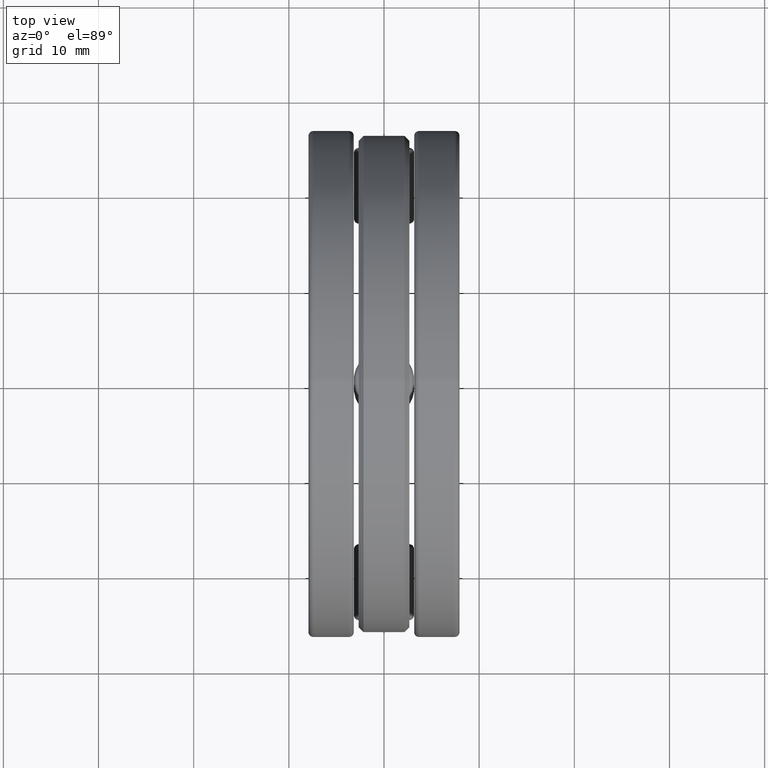
[diagram: clean part render]
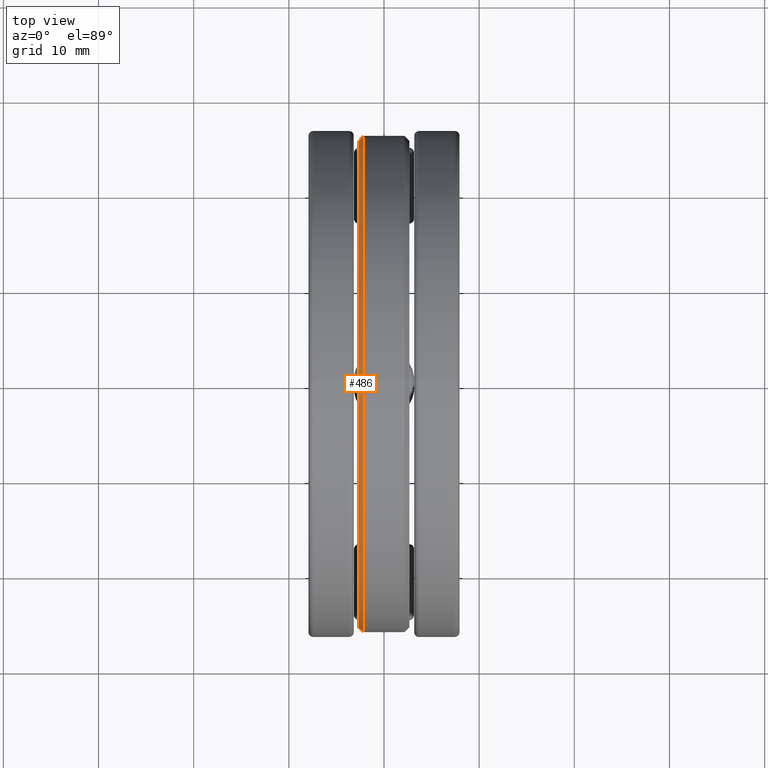
[diagram: same view with one face highlighted and labeled with its STEP entity id]
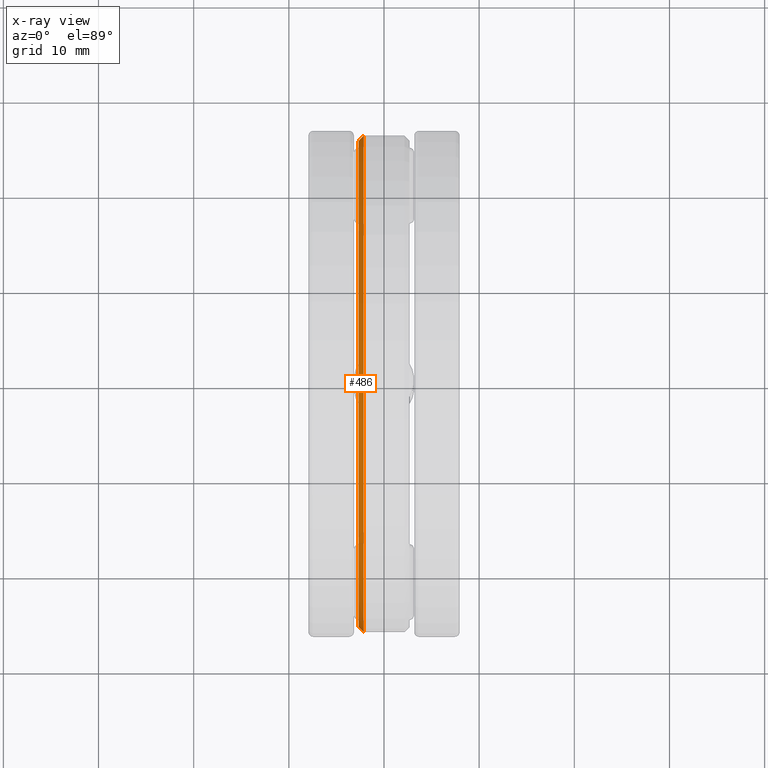
[diagram: x-ray of the same camera — body ghosted, the highlighted face saturated]
A machine part, top view. The second image highlights one B-rep face of the part: STEP entity #486.
The next image is the same camera in x-ray: the body ghosted, the highlighted face saturated — about 0% of this face is hidden behind the body in this view.
In plain terms, the highlighted conical surface has half-angle 45 deg.
Its self-contained STEP definition (entity closure, byte-faithful):
#116 = EDGE_LOOP ( 'NONE', ( #383 ) ) ;
#127 = EDGE_LOOP ( 'NONE', ( #802 ) ) ;
#195 = DIRECTION ( 'NONE',  ( 1.000000000000000000, 0.0000000000000000000, 0.0000000000000000000 ) ) ;
#304 = CARTESIAN_POINT ( 'NONE',  ( -0.1050000000000000500, 0.0000000000000000000, 1.006874999999999700 ) ) ;
#383 = ORIENTED_EDGE ( 'NONE', *, *, #1083, .F. ) ;
#410 = EDGE_CURVE ( 'NONE', #965, #965, #1161, .T. ) ;
#486 = ADVANCED_FACE ( 'NONE', ( #903, #1144 ), #1109, .T. ) ;
#497 = AXIS2_PLACEMENT_3D ( 'NONE', #606, #1396, #711 ) ;
#499 = CIRCLE ( 'NONE', #581, 1.006874999999999700 ) ;
#581 = AXIS2_PLACEMENT_3D ( 'NONE', #1045, #1054, #599 ) ;
#599 = DIRECTION ( 'NONE',  ( 0.0000000000000000000, 0.0000000000000000000, 1.000000000000000000 ) ) ;
#606 = CARTESIAN_POINT ( 'NONE',  ( -0.08500000000000004800, 0.0000000000000000000, 0.0000000000000000000 ) ) ;
#640 = CARTESIAN_POINT ( 'NONE',  ( -0.1050000000000000500, 0.0000000000000000000, 0.0000000000000000000 ) ) ;
#711 = DIRECTION ( 'NONE',  ( 0.0000000000000000000, 0.0000000000000000000, 1.000000000000000000 ) ) ;
#802 = ORIENTED_EDGE ( 'NONE', *, *, #410, .T. ) ;
#903 = FACE_OUTER_BOUND ( 'NONE', #127, .T. ) ;
#934 = VERTEX_POINT ( 'NONE', #304 ) ;
#965 = VERTEX_POINT ( 'NONE', #1093 ) ;
#983 = DIRECTION ( 'NONE',  ( 0.0000000000000000000, 0.0000000000000000000, -1.000000000000000000 ) ) ;
#1031 = AXIS2_PLACEMENT_3D ( 'NONE', #640, #195, #983 ) ;
#1045 = CARTESIAN_POINT ( 'NONE',  ( -0.1050000000000000500, 0.0000000000000000000, 0.0000000000000000000 ) ) ;
#1054 = DIRECTION ( 'NONE',  ( -1.000000000000000000, -0.0000000000000000000, -0.0000000000000000000 ) ) ;
#1083 = EDGE_CURVE ( 'NONE', #934, #934, #499, .T. ) ;
#1093 = CARTESIAN_POINT ( 'NONE',  ( -0.08500000000000004800, 0.0000000000000000000, 1.026875000000000000 ) ) ;
#1109 = CONICAL_SURFACE ( 'NONE', #1031, 1.006874999999999700, 0.7853981633974530500 ) ;
#1144 = FACE_BOUND ( 'NONE', #116, .T. ) ;
#1161 = CIRCLE ( 'NONE', #497, 1.026875000000000000 ) ;
#1396 = DIRECTION ( 'NONE',  ( -1.000000000000000000, -0.0000000000000000000, -0.0000000000000000000 ) ) ;